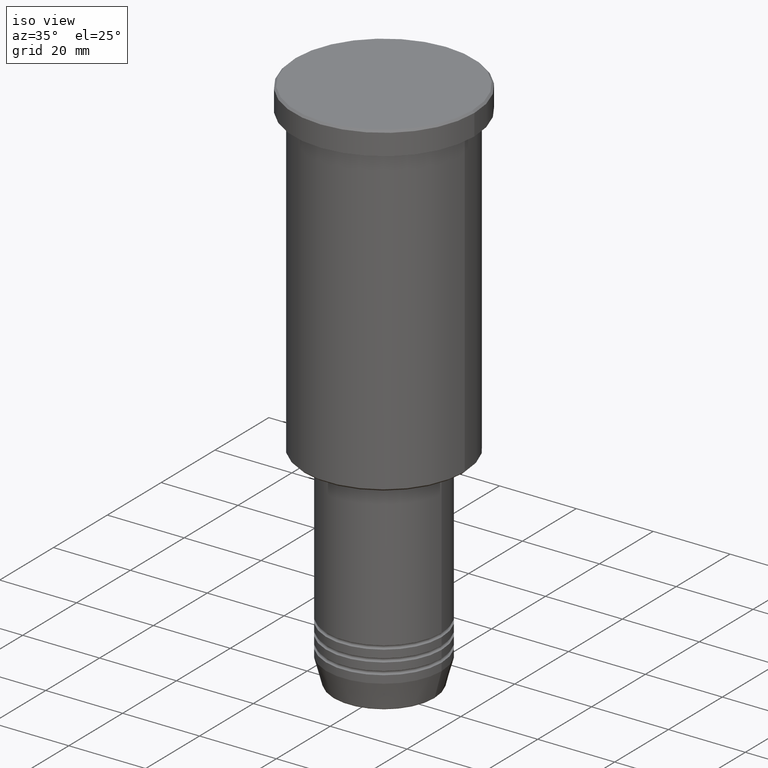
[diagram: clean part render]
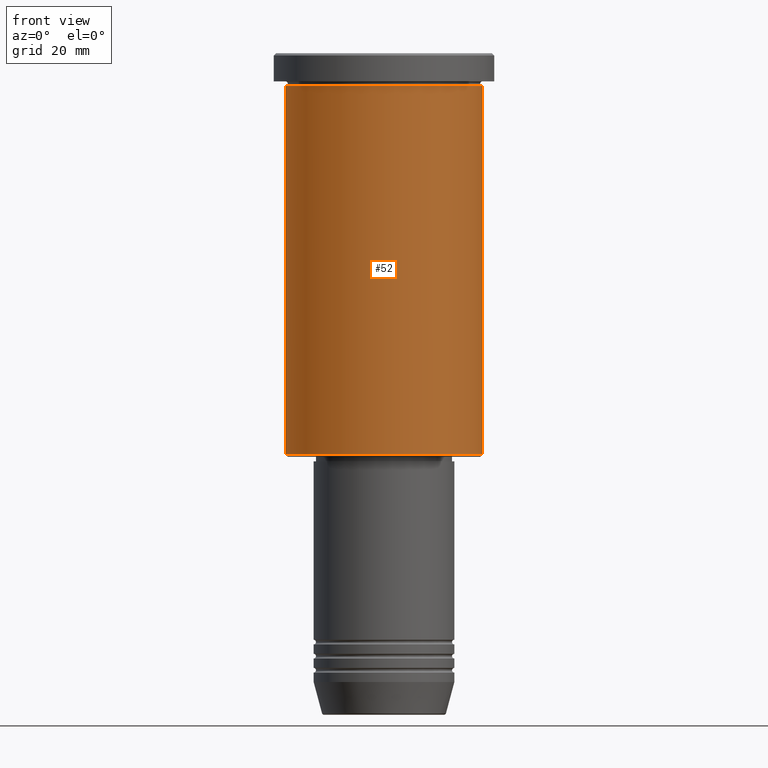
[diagram: tour spotlight — one face highlighted and labeled with its STEP entity id]
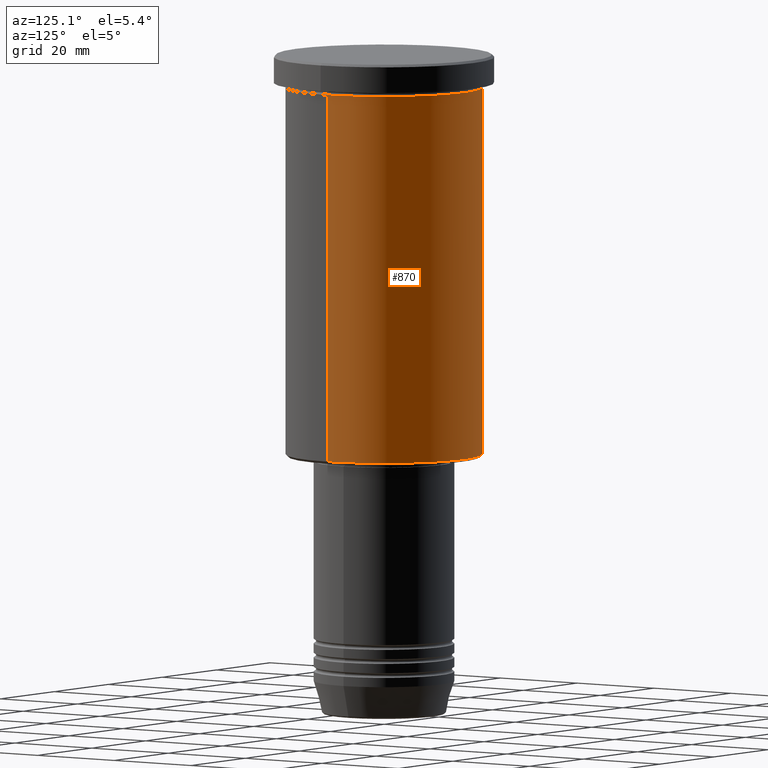
[diagram: tour spotlight — one face highlighted and labeled with its STEP entity id]
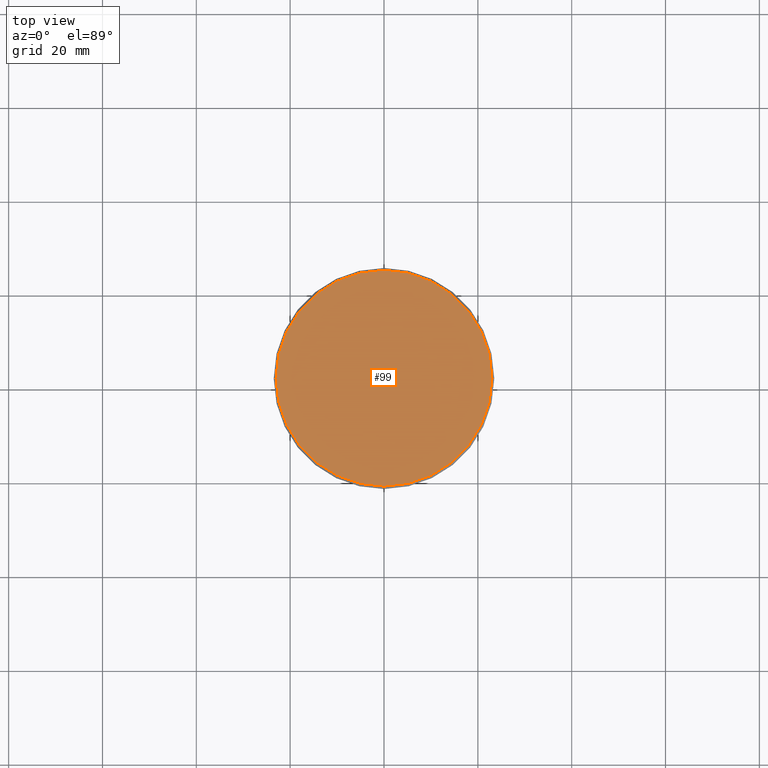
[diagram: tour spotlight — one face highlighted and labeled with its STEP entity id]
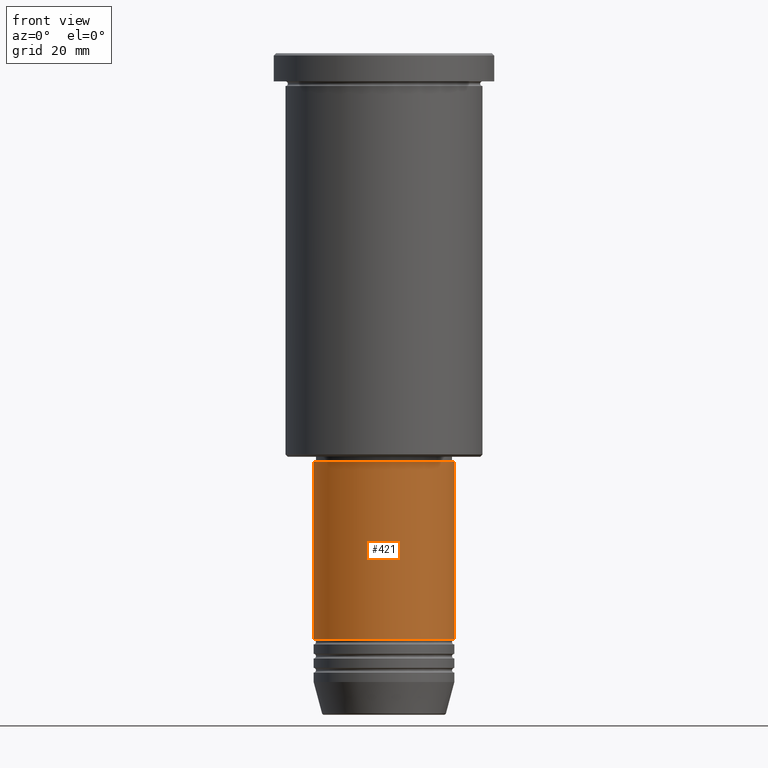
[diagram: tour spotlight — one face highlighted and labeled with its STEP entity id]
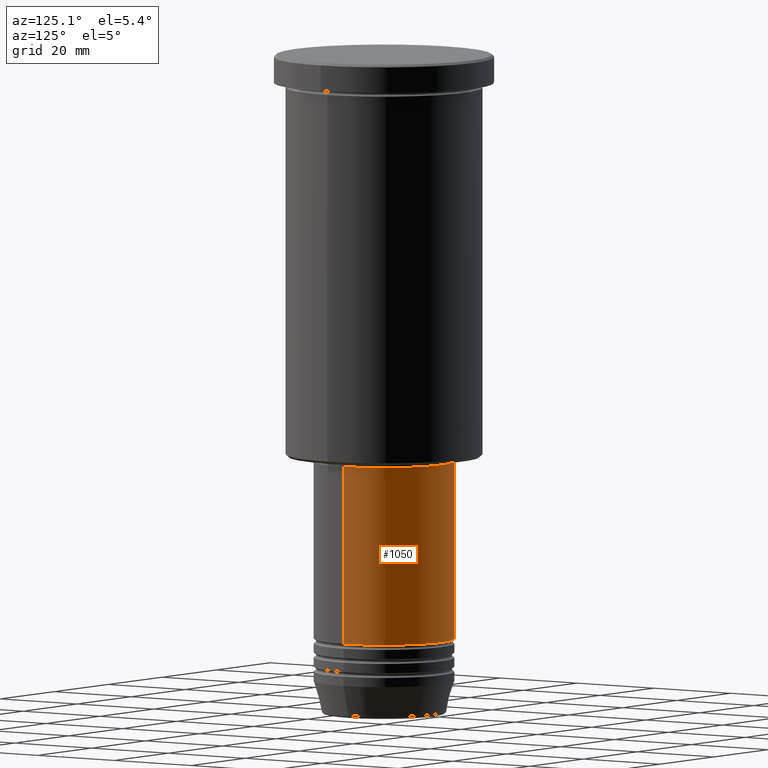
[diagram: tour spotlight — one face highlighted and labeled with its STEP entity id]
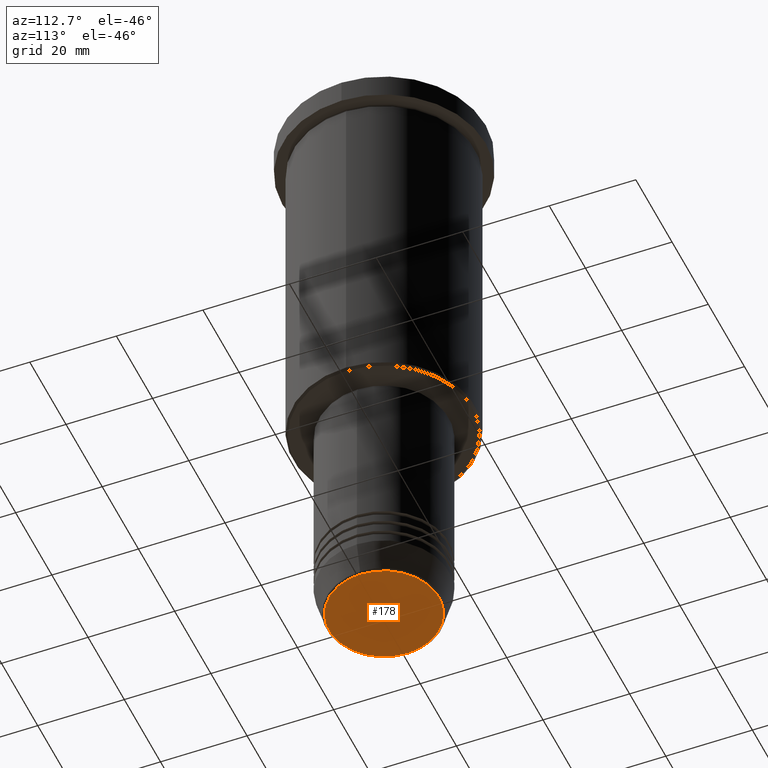
[diagram: tour spotlight — one face highlighted and labeled with its STEP entity id]
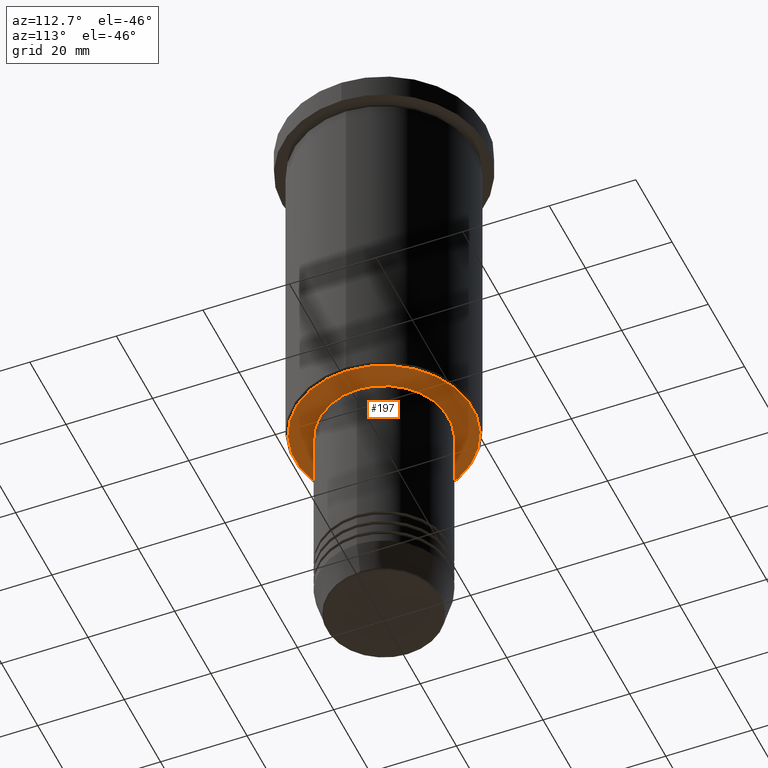
[diagram: tour spotlight — one face highlighted and labeled with its STEP entity id]
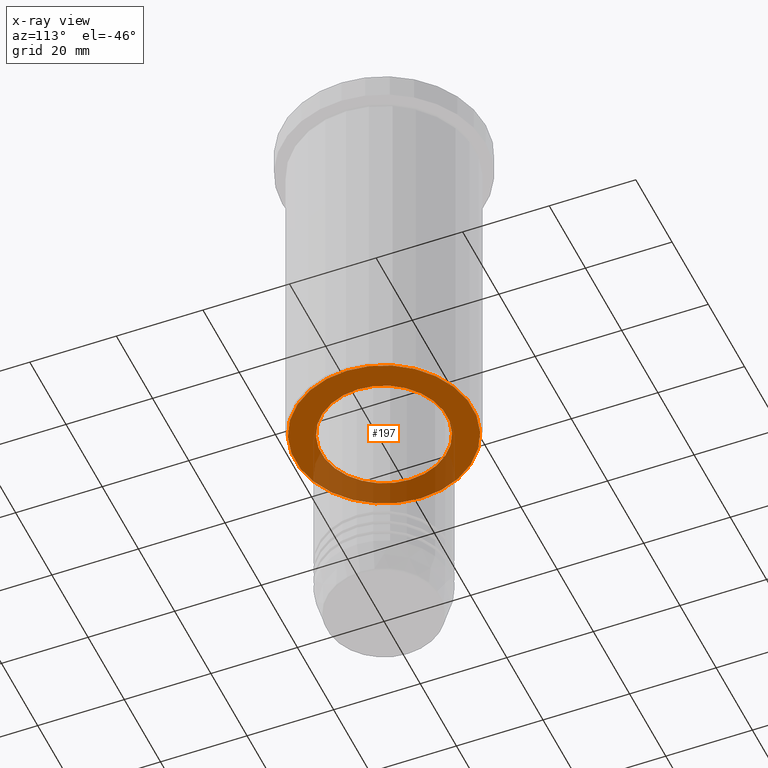
[diagram: x-ray of the same camera — body ghosted, this tour face saturated]
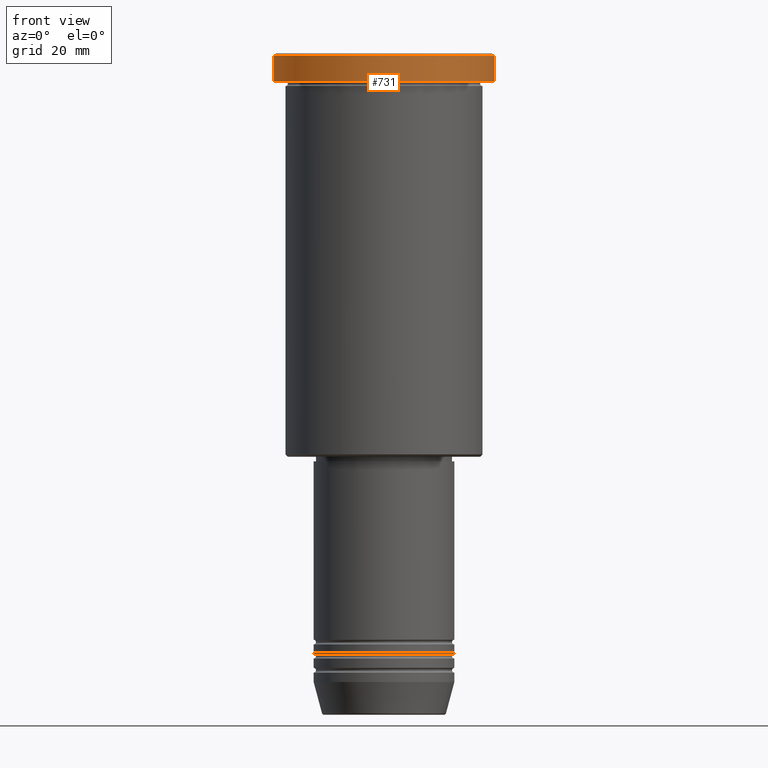
[diagram: tour spotlight — one face highlighted and labeled with its STEP entity id]
A machine part: a face-by-face anatomy tour. The part has 43 B-rep faces; the first image is the clean iso view, then the 8 largest visible faces are spotlighted one at a time (largest first), each with its STEP entity span.

Face 1 — front view, entity #52. In plain terms, the highlighted cylindrical surface (partial cylindrical patch) has radius 21 mm, axis along (-0, -0, 1).
Definition (entity closure, byte-faithful):
#52 = ADVANCED_FACE ( 'NONE', ( #1096 ), #464, .T. ) ;
#110 = CARTESIAN_POINT ( 'NONE',  ( 0.000000000000000000, 0.000000000000000000, -85.50000000000000000 ) ) ;
#140 = DIRECTION ( 'NONE',  ( -0.000000000000000000, -0.000000000000000000, 1.000000000000000000 ) ) ;
#187 = CARTESIAN_POINT ( 'NONE',  ( 0.000000000000000000, 0.000000000000000000, 0.000000000000000000 ) ) ;
#238 = CARTESIAN_POINT ( 'NONE',  ( 0.000000000000000000, 0.000000000000000000, -6.999999999999994671 ) ) ;
#278 = EDGE_CURVE ( 'NONE', #897, #708, #657, .T. ) ;
#289 = DIRECTION ( 'NONE',  ( -0.000000000000000000, -0.000000000000000000, 1.000000000000000000 ) ) ;
#306 = AXIS2_PLACEMENT_3D ( 'NONE', #238, #140, #330 ) ;
#330 = DIRECTION ( 'NONE',  ( 1.000000000000000000, 0.000000000000000000, 0.000000000000000000 ) ) ;
#347 = EDGE_LOOP ( 'NONE', ( #718, #887, #548, #1162 ) ) ;
#426 = VERTEX_POINT ( 'NONE', #743 ) ;
#428 = VERTEX_POINT ( 'NONE', #479 ) ;
#431 = EDGE_CURVE ( 'NONE', #426, #428, #588, .T. ) ;
#446 = LINE ( 'NONE', #540, #630 ) ;
#464 = CYLINDRICAL_SURFACE ( 'NONE', #1173, 21.00000000000000000 ) ;
#479 = CARTESIAN_POINT ( 'NONE',  ( 21.00000000000000000, 0.000000000000000000, -85.50000000000000000 ) ) ;
#540 = CARTESIAN_POINT ( 'NONE',  ( 21.00000000000000000, 0.000000000000000000, 0.000000000000000000 ) ) ;
#548 = ORIENTED_EDGE ( 'NONE', *, *, #919, .T. ) ;
#570 = DIRECTION ( 'NONE',  ( -0.000000000000000000, -0.000000000000000000, 1.000000000000000000 ) ) ;
#588 = CIRCLE ( 'NONE', #627, 21.00000000000000000 ) ;
#627 = AXIS2_PLACEMENT_3D ( 'NONE', #110, #570, #1016 ) ;
#630 = VECTOR ( 'NONE', #872, 1000.000000000000000 ) ;
#642 = DIRECTION ( 'NONE',  ( 1.000000000000000000, 0.000000000000000000, 0.000000000000000000 ) ) ;
#657 = CIRCLE ( 'NONE', #306, 21.00000000000000000 ) ;
#708 = VERTEX_POINT ( 'NONE', #1014 ) ;
#718 = ORIENTED_EDGE ( 'NONE', *, *, #1095, .F. ) ;
#743 = CARTESIAN_POINT ( 'NONE',  ( -21.00000000000000000, 2.571758278209441661E-15, -85.50000000000000000 ) ) ;
#791 = CARTESIAN_POINT ( 'NONE',  ( -21.00000000000000000, 2.571758278209441661E-15, 0.000000000000000000 ) ) ;
#860 = LINE ( 'NONE', #791, #1047 ) ;
#872 = DIRECTION ( 'NONE',  ( -0.000000000000000000, -0.000000000000000000, 1.000000000000000000 ) ) ;
#883 = DIRECTION ( 'NONE',  ( -0.000000000000000000, -0.000000000000000000, 1.000000000000000000 ) ) ;
#887 = ORIENTED_EDGE ( 'NONE', *, *, #431, .T. ) ;
#897 = VERTEX_POINT ( 'NONE', #979 ) ;
#919 = EDGE_CURVE ( 'NONE', #428, #708, #446, .T. ) ;
#979 = CARTESIAN_POINT ( 'NONE',  ( -21.00000000000000000, 2.571758278209441661E-15, -6.999999999999994671 ) ) ;
#1014 = CARTESIAN_POINT ( 'NONE',  ( 21.00000000000000000, 0.000000000000000000, -6.999999999999994671 ) ) ;
#1016 = DIRECTION ( 'NONE',  ( -1.000000000000000000, 0.000000000000000000, 0.000000000000000000 ) ) ;
#1047 = VECTOR ( 'NONE', #883, 1000.000000000000000 ) ;
#1095 = EDGE_CURVE ( 'NONE', #426, #897, #860, .T. ) ;
#1096 = FACE_OUTER_BOUND ( 'NONE', #347, .T. ) ;
#1162 = ORIENTED_EDGE ( 'NONE', *, *, #278, .F. ) ;
#1173 = AXIS2_PLACEMENT_3D ( 'NONE', #187, #289, #642 ) ;

Face 2 — auxiliary view, entity #870. In plain terms, the highlighted cylindrical surface (partial cylindrical patch) has radius 21 mm, axis along (-0, -0, 1).
Definition (entity closure, byte-faithful):
#189 = FACE_OUTER_BOUND ( 'NONE', #784, .T. ) ;
#193 = AXIS2_PLACEMENT_3D ( 'NONE', #1071, #533, #726 ) ;
#282 = DIRECTION ( 'NONE',  ( -0.000000000000000000, -0.000000000000000000, 1.000000000000000000 ) ) ;
#287 = DIRECTION ( 'NONE',  ( 1.000000000000000000, 0.000000000000000000, 0.000000000000000000 ) ) ;
#334 = AXIS2_PLACEMENT_3D ( 'NONE', #866, #420, #632 ) ;
#420 = DIRECTION ( 'NONE',  ( -0.000000000000000000, -0.000000000000000000, 1.000000000000000000 ) ) ;
#426 = VERTEX_POINT ( 'NONE', #743 ) ;
#428 = VERTEX_POINT ( 'NONE', #479 ) ;
#446 = LINE ( 'NONE', #540, #630 ) ;
#449 = ORIENTED_EDGE ( 'NONE', *, *, #598, .T. ) ;
#454 = ORIENTED_EDGE ( 'NONE', *, *, #1095, .T. ) ;
#479 = CARTESIAN_POINT ( 'NONE',  ( 21.00000000000000000, 0.000000000000000000, -85.50000000000000000 ) ) ;
#516 = AXIS2_PLACEMENT_3D ( 'NONE', #829, #282, #287 ) ;
#533 = DIRECTION ( 'NONE',  ( -0.000000000000000000, -0.000000000000000000, 1.000000000000000000 ) ) ;
#538 = ORIENTED_EDGE ( 'NONE', *, *, #768, .F. ) ;
#540 = CARTESIAN_POINT ( 'NONE',  ( 21.00000000000000000, 0.000000000000000000, 0.000000000000000000 ) ) ;
#598 = EDGE_CURVE ( 'NONE', #428, #426, #913, .T. ) ;
#609 = CIRCLE ( 'NONE', #193, 21.00000000000000000 ) ;
#630 = VECTOR ( 'NONE', #872, 1000.000000000000000 ) ;
#632 = DIRECTION ( 'NONE',  ( -1.000000000000000000, 0.000000000000000000, 0.000000000000000000 ) ) ;
#708 = VERTEX_POINT ( 'NONE', #1014 ) ;
#726 = DIRECTION ( 'NONE',  ( 1.000000000000000000, 0.000000000000000000, 0.000000000000000000 ) ) ;
#743 = CARTESIAN_POINT ( 'NONE',  ( -21.00000000000000000, 2.571758278209441661E-15, -85.50000000000000000 ) ) ;
#768 = EDGE_CURVE ( 'NONE', #708, #897, #609, .T. ) ;
#784 = EDGE_LOOP ( 'NONE', ( #449, #454, #538, #933 ) ) ;
#791 = CARTESIAN_POINT ( 'NONE',  ( -21.00000000000000000, 2.571758278209441661E-15, 0.000000000000000000 ) ) ;
#829 = CARTESIAN_POINT ( 'NONE',  ( 0.000000000000000000, 0.000000000000000000, 0.000000000000000000 ) ) ;
#860 = LINE ( 'NONE', #791, #1047 ) ;
#866 = CARTESIAN_POINT ( 'NONE',  ( 0.000000000000000000, 0.000000000000000000, -85.50000000000000000 ) ) ;
#870 = ADVANCED_FACE ( 'NONE', ( #189 ), #915, .T. ) ;
#872 = DIRECTION ( 'NONE',  ( -0.000000000000000000, -0.000000000000000000, 1.000000000000000000 ) ) ;
#883 = DIRECTION ( 'NONE',  ( -0.000000000000000000, -0.000000000000000000, 1.000000000000000000 ) ) ;
#897 = VERTEX_POINT ( 'NONE', #979 ) ;
#913 = CIRCLE ( 'NONE', #334, 21.00000000000000000 ) ;
#915 = CYLINDRICAL_SURFACE ( 'NONE', #516, 21.00000000000000000 ) ;
#919 = EDGE_CURVE ( 'NONE', #428, #708, #446, .T. ) ;
#933 = ORIENTED_EDGE ( 'NONE', *, *, #919, .F. ) ;
#979 = CARTESIAN_POINT ( 'NONE',  ( -21.00000000000000000, 2.571758278209441661E-15, -6.999999999999994671 ) ) ;
#1014 = CARTESIAN_POINT ( 'NONE',  ( 21.00000000000000000, 0.000000000000000000, -6.999999999999994671 ) ) ;
#1047 = VECTOR ( 'NONE', #883, 1000.000000000000000 ) ;
#1071 = CARTESIAN_POINT ( 'NONE',  ( 0.000000000000000000, 0.000000000000000000, -6.999999999999994671 ) ) ;
#1095 = EDGE_CURVE ( 'NONE', #426, #897, #860, .T. ) ;

Face 3 — top view, entity #99. In plain terms, the highlighted planar face has unit normal (0, -0, 1).
Definition (entity closure, byte-faithful):
#25 = CARTESIAN_POINT ( 'NONE',  ( -23.00000000000002487, 0.000000000000000000, 0.000000000000000000 ) ) ;
#64 = DIRECTION ( 'NONE',  ( 1.000000000000000000, 0.000000000000000000, 0.000000000000000000 ) ) ;
#97 = FACE_OUTER_BOUND ( 'NONE', #265, .T. ) ;
#99 = ADVANCED_FACE ( 'NONE', ( #97 ), #1111, .T. ) ;
#105 = DIRECTION ( 'NONE',  ( 1.000000000000000000, 0.000000000000000000, 0.000000000000000000 ) ) ;
#109 = DIRECTION ( 'NONE',  ( -0.000000000000000000, -0.000000000000000000, 1.000000000000000000 ) ) ;
#229 = AXIS2_PLACEMENT_3D ( 'NONE', #261, #891, #64 ) ;
#261 = CARTESIAN_POINT ( 'NONE',  ( 0.000000000000000000, 0.000000000000000000, 0.000000000000000000 ) ) ;
#265 = EDGE_LOOP ( 'NONE', ( #352, #1177 ) ) ;
#352 = ORIENTED_EDGE ( 'NONE', *, *, #721, .T. ) ;
#370 = DIRECTION ( 'NONE',  ( 0.000000000000000000, -0.000000000000000000, 1.000000000000000000 ) ) ;
#409 = AXIS2_PLACEMENT_3D ( 'NONE', #908, #370, #573 ) ;
#573 = DIRECTION ( 'NONE',  ( 1.000000000000000000, 0.000000000000000000, 0.000000000000000000 ) ) ;
#656 = CARTESIAN_POINT ( 'NONE',  ( 0.000000000000000000, 0.000000000000000000, 0.000000000000000000 ) ) ;
#666 = AXIS2_PLACEMENT_3D ( 'NONE', #656, #109, #105 ) ;
#721 = EDGE_CURVE ( 'NONE', #1058, #763, #1026, .T. ) ;
#763 = VERTEX_POINT ( 'NONE', #907 ) ;
#777 = CIRCLE ( 'NONE', #229, 23.00000000000002487 ) ;
#891 = DIRECTION ( 'NONE',  ( -0.000000000000000000, -0.000000000000000000, 1.000000000000000000 ) ) ;
#907 = CARTESIAN_POINT ( 'NONE',  ( 23.00000000000002487, 2.847303808017597717E-15, 0.000000000000000000 ) ) ;
#908 = CARTESIAN_POINT ( 'NONE',  ( 0.000000000000000000, 0.000000000000000000, 0.000000000000000000 ) ) ;
#947 = EDGE_CURVE ( 'NONE', #763, #1058, #777, .T. ) ;
#1026 = CIRCLE ( 'NONE', #666, 23.00000000000002487 ) ;
#1058 = VERTEX_POINT ( 'NONE', #25 ) ;
#1111 = PLANE ( 'NONE',  #409 ) ;
#1177 = ORIENTED_EDGE ( 'NONE', *, *, #947, .T. ) ;

Face 4 — front view, entity #421. In plain terms, the highlighted cylindrical surface (partial cylindrical patch) has radius 15 mm, axis along (-0, -0, 1).
Definition (entity closure, byte-faithful):
#20 = DIRECTION ( 'NONE',  ( 1.000000000000000000, 0.000000000000000000, 0.000000000000000000 ) ) ;
#138 = DIRECTION ( 'NONE',  ( 1.000000000000000000, 0.000000000000000000, 0.000000000000000000 ) ) ;
#160 = ORIENTED_EDGE ( 'NONE', *, *, #1175, .T. ) ;
#169 = AXIS2_PLACEMENT_3D ( 'NONE', #341, #817, #138 ) ;
#194 = CARTESIAN_POINT ( 'NONE',  ( 0.000000000000000000, 0.000000000000000000, -124.9999999999999716 ) ) ;
#264 = VERTEX_POINT ( 'NONE', #997 ) ;
#275 = EDGE_CURVE ( 'NONE', #264, #868, #1169, .T. ) ;
#331 = AXIS2_PLACEMENT_3D ( 'NONE', #194, #827, #503 ) ;
#341 = CARTESIAN_POINT ( 'NONE',  ( 0.000000000000000000, 0.000000000000000000, -87.00000000000000000 ) ) ;
#350 = EDGE_LOOP ( 'NONE', ( #944, #478, #160, #782 ) ) ;
#365 = EDGE_CURVE ( 'NONE', #976, #523, #1013, .T. ) ;
#368 = CARTESIAN_POINT ( 'NONE',  ( -15.00000000000000000, 1.836970198721029589E-15, 0.000000000000000000 ) ) ;
#375 = DIRECTION ( 'NONE',  ( -0.000000000000000000, -0.000000000000000000, 1.000000000000000000 ) ) ;
#385 = LINE ( 'NONE', #368, #1076 ) ;
#387 = CARTESIAN_POINT ( 'NONE',  ( -15.00000000000000000, 1.836970198721029589E-15, -87.00000000000000000 ) ) ;
#421 = ADVANCED_FACE ( 'NONE', ( #1118 ), #562, .T. ) ;
#478 = ORIENTED_EDGE ( 'NONE', *, *, #275, .T. ) ;
#503 = DIRECTION ( 'NONE',  ( 1.000000000000000000, 0.000000000000000000, 0.000000000000000000 ) ) ;
#523 = VERTEX_POINT ( 'NONE', #1065 ) ;
#562 = CYLINDRICAL_SURFACE ( 'NONE', #988, 15.00000000000000000 ) ;
#582 = DIRECTION ( 'NONE',  ( -0.000000000000000000, -0.000000000000000000, 1.000000000000000000 ) ) ;
#634 = VECTOR ( 'NONE', #831, 1000.000000000000000 ) ;
#646 = EDGE_CURVE ( 'NONE', #264, #976, #385, .T. ) ;
#722 = CARTESIAN_POINT ( 'NONE',  ( 15.00000000000000000, 0.000000000000000000, -124.9999999999999716 ) ) ;
#756 = CARTESIAN_POINT ( 'NONE',  ( 0.000000000000000000, 0.000000000000000000, 0.000000000000000000 ) ) ;
#782 = ORIENTED_EDGE ( 'NONE', *, *, #365, .F. ) ;
#817 = DIRECTION ( 'NONE',  ( -0.000000000000000000, -0.000000000000000000, 1.000000000000000000 ) ) ;
#827 = DIRECTION ( 'NONE',  ( -0.000000000000000000, -0.000000000000000000, 1.000000000000000000 ) ) ;
#831 = DIRECTION ( 'NONE',  ( -0.000000000000000000, -0.000000000000000000, 1.000000000000000000 ) ) ;
#868 = VERTEX_POINT ( 'NONE', #722 ) ;
#922 = LINE ( 'NONE', #928, #634 ) ;
#928 = CARTESIAN_POINT ( 'NONE',  ( 15.00000000000000000, 0.000000000000000000, 0.000000000000000000 ) ) ;
#944 = ORIENTED_EDGE ( 'NONE', *, *, #646, .F. ) ;
#976 = VERTEX_POINT ( 'NONE', #387 ) ;
#988 = AXIS2_PLACEMENT_3D ( 'NONE', #756, #582, #20 ) ;
#997 = CARTESIAN_POINT ( 'NONE',  ( -15.00000000000000000, 1.836970198721029589E-15, -124.9999999999999716 ) ) ;
#1013 = CIRCLE ( 'NONE', #169, 15.00000000000000000 ) ;
#1065 = CARTESIAN_POINT ( 'NONE',  ( 15.00000000000000000, 0.000000000000000000, -87.00000000000000000 ) ) ;
#1076 = VECTOR ( 'NONE', #375, 1000.000000000000000 ) ;
#1118 = FACE_OUTER_BOUND ( 'NONE', #350, .T. ) ;
#1169 = CIRCLE ( 'NONE', #331, 15.00000000000000000 ) ;
#1175 = EDGE_CURVE ( 'NONE', #868, #523, #922, .T. ) ;

Face 5 — auxiliary view, entity #1050. In plain terms, the highlighted cylindrical surface (partial cylindrical patch) has radius 15 mm, axis along (-0, -0, 1).
Definition (entity closure, byte-faithful):
#1 = AXIS2_PLACEMENT_3D ( 'NONE', #952, #490, #677 ) ;
#92 = ORIENTED_EDGE ( 'NONE', *, *, #1175, .F. ) ;
#123 = DIRECTION ( 'NONE',  ( 1.000000000000000000, 0.000000000000000000, 0.000000000000000000 ) ) ;
#201 = CIRCLE ( 'NONE', #1, 15.00000000000000000 ) ;
#221 = CYLINDRICAL_SURFACE ( 'NONE', #591, 15.00000000000000000 ) ;
#264 = VERTEX_POINT ( 'NONE', #997 ) ;
#291 = EDGE_CURVE ( 'NONE', #523, #976, #201, .T. ) ;
#301 = ORIENTED_EDGE ( 'NONE', *, *, #646, .T. ) ;
#368 = CARTESIAN_POINT ( 'NONE',  ( -15.00000000000000000, 1.836970198721029589E-15, 0.000000000000000000 ) ) ;
#375 = DIRECTION ( 'NONE',  ( -0.000000000000000000, -0.000000000000000000, 1.000000000000000000 ) ) ;
#385 = LINE ( 'NONE', #368, #1076 ) ;
#387 = CARTESIAN_POINT ( 'NONE',  ( -15.00000000000000000, 1.836970198721029589E-15, -87.00000000000000000 ) ) ;
#418 = CIRCLE ( 'NONE', #706, 15.00000000000000000 ) ;
#471 = CARTESIAN_POINT ( 'NONE',  ( 0.000000000000000000, 0.000000000000000000, 0.000000000000000000 ) ) ;
#490 = DIRECTION ( 'NONE',  ( -0.000000000000000000, -0.000000000000000000, 1.000000000000000000 ) ) ;
#523 = VERTEX_POINT ( 'NONE', #1065 ) ;
#591 = AXIS2_PLACEMENT_3D ( 'NONE', #471, #832, #123 ) ;
#634 = VECTOR ( 'NONE', #831, 1000.000000000000000 ) ;
#646 = EDGE_CURVE ( 'NONE', #264, #976, #385, .T. ) ;
#651 = DIRECTION ( 'NONE',  ( -0.000000000000000000, -0.000000000000000000, 1.000000000000000000 ) ) ;
#677 = DIRECTION ( 'NONE',  ( 1.000000000000000000, 0.000000000000000000, 0.000000000000000000 ) ) ;
#706 = AXIS2_PLACEMENT_3D ( 'NONE', #1080, #651, #836 ) ;
#722 = CARTESIAN_POINT ( 'NONE',  ( 15.00000000000000000, 0.000000000000000000, -124.9999999999999716 ) ) ;
#831 = DIRECTION ( 'NONE',  ( -0.000000000000000000, -0.000000000000000000, 1.000000000000000000 ) ) ;
#832 = DIRECTION ( 'NONE',  ( -0.000000000000000000, -0.000000000000000000, 1.000000000000000000 ) ) ;
#836 = DIRECTION ( 'NONE',  ( 1.000000000000000000, 0.000000000000000000, 0.000000000000000000 ) ) ;
#868 = VERTEX_POINT ( 'NONE', #722 ) ;
#922 = LINE ( 'NONE', #928, #634 ) ;
#928 = CARTESIAN_POINT ( 'NONE',  ( 15.00000000000000000, 0.000000000000000000, 0.000000000000000000 ) ) ;
#952 = CARTESIAN_POINT ( 'NONE',  ( 0.000000000000000000, 0.000000000000000000, -87.00000000000000000 ) ) ;
#972 = ORIENTED_EDGE ( 'NONE', *, *, #291, .F. ) ;
#976 = VERTEX_POINT ( 'NONE', #387 ) ;
#997 = CARTESIAN_POINT ( 'NONE',  ( -15.00000000000000000, 1.836970198721029589E-15, -124.9999999999999716 ) ) ;
#1050 = ADVANCED_FACE ( 'NONE', ( #1125 ), #221, .T. ) ;
#1065 = CARTESIAN_POINT ( 'NONE',  ( 15.00000000000000000, 0.000000000000000000, -87.00000000000000000 ) ) ;
#1076 = VECTOR ( 'NONE', #375, 1000.000000000000000 ) ;
#1080 = CARTESIAN_POINT ( 'NONE',  ( 0.000000000000000000, 0.000000000000000000, -124.9999999999999716 ) ) ;
#1125 = FACE_OUTER_BOUND ( 'NONE', #1146, .T. ) ;
#1146 = EDGE_LOOP ( 'NONE', ( #1172, #301, #972, #92 ) ) ;
#1147 = EDGE_CURVE ( 'NONE', #868, #264, #418, .T. ) ;
#1172 = ORIENTED_EDGE ( 'NONE', *, *, #1147, .T. ) ;
#1175 = EDGE_CURVE ( 'NONE', #868, #523, #922, .T. ) ;

Face 6 — auxiliary view, entity #178. In plain terms, the highlighted planar face has unit normal (0, -0, 1).
Definition (entity closure, byte-faithful):
#83 = DIRECTION ( 'NONE',  ( 0.000000000000000000, 0.000000000000000000, -1.000000000000000000 ) ) ;
#106 = EDGE_CURVE ( 'NONE', #930, #1082, #1136, .T. ) ;
#134 = DIRECTION ( 'NONE',  ( 0.000000000000000000, 0.000000000000000000, -1.000000000000000000 ) ) ;
#156 = CARTESIAN_POINT ( 'NONE',  ( 0.000000000000000000, 0.000000000000000000, -141.0000000000000000 ) ) ;
#178 = ADVANCED_FACE ( 'NONE', ( #292 ), #661, .F. ) ;
#210 = CIRCLE ( 'NONE', #361, 12.74069215899265828 ) ;
#252 = ORIENTED_EDGE ( 'NONE', *, *, #984, .T. ) ;
#292 = FACE_OUTER_BOUND ( 'NONE', #1024, .T. ) ;
#351 = AXIS2_PLACEMENT_3D ( 'NONE', #156, #798, #439 ) ;
#361 = AXIS2_PLACEMENT_3D ( 'NONE', #443, #83, #526 ) ;
#439 = DIRECTION ( 'NONE',  ( 1.000000000000000000, 0.000000000000000000, 0.000000000000000000 ) ) ;
#443 = CARTESIAN_POINT ( 'NONE',  ( 0.000000000000000000, 0.000000000000000000, -141.0000000000000000 ) ) ;
#501 = CARTESIAN_POINT ( 'NONE',  ( -12.74069215899265828, 1.589857736427681035E-15, -141.0000000000000000 ) ) ;
#526 = DIRECTION ( 'NONE',  ( 1.000000000000000000, 0.000000000000000000, 0.000000000000000000 ) ) ;
#535 = CARTESIAN_POINT ( 'NONE',  ( 12.74069215899265828, 0.000000000000000000, -141.0000000000000000 ) ) ;
#661 = PLANE ( 'NONE',  #351 ) ;
#716 = AXIS2_PLACEMENT_3D ( 'NONE', #770, #134, #1037 ) ;
#770 = CARTESIAN_POINT ( 'NONE',  ( 0.000000000000000000, 0.000000000000000000, -141.0000000000000000 ) ) ;
#798 = DIRECTION ( 'NONE',  ( 0.000000000000000000, -0.000000000000000000, 1.000000000000000000 ) ) ;
#930 = VERTEX_POINT ( 'NONE', #535 ) ;
#984 = EDGE_CURVE ( 'NONE', #1082, #930, #210, .T. ) ;
#1024 = EDGE_LOOP ( 'NONE', ( #1078, #252 ) ) ;
#1037 = DIRECTION ( 'NONE',  ( 1.000000000000000000, 0.000000000000000000, 0.000000000000000000 ) ) ;
#1078 = ORIENTED_EDGE ( 'NONE', *, *, #106, .T. ) ;
#1082 = VERTEX_POINT ( 'NONE', #501 ) ;
#1136 = CIRCLE ( 'NONE', #716, 12.74069215899265828 ) ;

Face 7 — auxiliary view, entity #197. An x-ray twin of the same camera follows (body ghosted, this face saturated) — the face is partly hidden behind the body. In plain terms, the highlighted planar face has unit normal (0, 0, -1).
Definition (entity closure, byte-faithful):
#13 = CARTESIAN_POINT ( 'NONE',  ( 20.50000000000000355, 0.000000000000000000, -86.00000000000000000 ) ) ;
#26 = VERTEX_POINT ( 'NONE', #525 ) ;
#29 = DIRECTION ( 'NONE',  ( -0.000000000000000000, -0.000000000000000000, 1.000000000000000000 ) ) ;
#57 = VERTEX_POINT ( 'NONE', #447 ) ;
#74 = VERTEX_POINT ( 'NONE', #13 ) ;
#86 = AXIS2_PLACEMENT_3D ( 'NONE', #995, #452, #1123 ) ;
#95 = CIRCLE ( 'NONE', #1046, 14.49999999999999822 ) ;
#119 = CARTESIAN_POINT ( 'NONE',  ( 14.49999999999999822, 0.000000000000000000, -86.00000000000000000 ) ) ;
#121 = EDGE_CURVE ( 'NONE', #26, #74, #1093, .T. ) ;
#130 = DIRECTION ( 'NONE',  ( -1.000000000000000000, 0.000000000000000000, 0.000000000000000000 ) ) ;
#181 = ORIENTED_EDGE ( 'NONE', *, *, #121, .T. ) ;
#197 = ADVANCED_FACE ( 'NONE', ( #624, #820 ), #636, .T. ) ;
#209 = EDGE_CURVE ( 'NONE', #57, #975, #977, .T. ) ;
#383 = DIRECTION ( 'NONE',  ( 0.000000000000000000, 0.000000000000000000, -1.000000000000000000 ) ) ;
#402 = AXIS2_PLACEMENT_3D ( 'NONE', #475, #383, #1124 ) ;
#447 = CARTESIAN_POINT ( 'NONE',  ( -14.49999999999999822, 1.775737858763662015E-15, -86.00000000000000000 ) ) ;
#452 = DIRECTION ( 'NONE',  ( 0.000000000000000000, 0.000000000000000000, -1.000000000000000000 ) ) ;
#475 = CARTESIAN_POINT ( 'NONE',  ( 0.000000000000000000, 0.000000000000000000, -86.00000000000000000 ) ) ;
#525 = CARTESIAN_POINT ( 'NONE',  ( -20.50000000000000355, 2.541142108230758269E-15, -86.00000000000000000 ) ) ;
#561 = CARTESIAN_POINT ( 'NONE',  ( 0.000000000000000000, 0.000000000000000000, -86.00000000000000000 ) ) ;
#593 = ORIENTED_EDGE ( 'NONE', *, *, #209, .T. ) ;
#624 = FACE_OUTER_BOUND ( 'NONE', #720, .T. ) ;
#636 = PLANE ( 'NONE',  #86 ) ;
#676 = ORIENTED_EDGE ( 'NONE', *, *, #804, .T. ) ;
#720 = EDGE_LOOP ( 'NONE', ( #966, #181 ) ) ;
#725 = AXIS2_PLACEMENT_3D ( 'NONE', #561, #934, #130 ) ;
#804 = EDGE_CURVE ( 'NONE', #975, #57, #95, .T. ) ;
#820 = FACE_BOUND ( 'NONE', #882, .T. ) ;
#835 = AXIS2_PLACEMENT_3D ( 'NONE', #1020, #29, #863 ) ;
#863 = DIRECTION ( 'NONE',  ( 1.000000000000000000, 0.000000000000000000, 0.000000000000000000 ) ) ;
#882 = EDGE_LOOP ( 'NONE', ( #676, #593 ) ) ;
#934 = DIRECTION ( 'NONE',  ( 0.000000000000000000, 0.000000000000000000, -1.000000000000000000 ) ) ;
#966 = ORIENTED_EDGE ( 'NONE', *, *, #1166, .T. ) ;
#975 = VERTEX_POINT ( 'NONE', #119 ) ;
#977 = CIRCLE ( 'NONE', #835, 14.49999999999999822 ) ;
#995 = CARTESIAN_POINT ( 'NONE',  ( 0.000000000000000000, 21.00000000000000000, -86.00000000000000000 ) ) ;
#1017 = DIRECTION ( 'NONE',  ( 1.000000000000000000, 0.000000000000000000, 0.000000000000000000 ) ) ;
#1020 = CARTESIAN_POINT ( 'NONE',  ( 0.000000000000000000, 0.000000000000000000, -86.00000000000000000 ) ) ;
#1046 = AXIS2_PLACEMENT_3D ( 'NONE', #1144, #1087, #1017 ) ;
#1068 = CIRCLE ( 'NONE', #725, 20.50000000000000355 ) ;
#1087 = DIRECTION ( 'NONE',  ( -0.000000000000000000, -0.000000000000000000, 1.000000000000000000 ) ) ;
#1093 = CIRCLE ( 'NONE', #402, 20.50000000000000355 ) ;
#1123 = DIRECTION ( 'NONE',  ( -1.000000000000000000, 0.000000000000000000, -0.000000000000000000 ) ) ;
#1124 = DIRECTION ( 'NONE',  ( -1.000000000000000000, 0.000000000000000000, 0.000000000000000000 ) ) ;
#1144 = CARTESIAN_POINT ( 'NONE',  ( 0.000000000000000000, 0.000000000000000000, -86.00000000000000000 ) ) ;
#1166 = EDGE_CURVE ( 'NONE', #74, #26, #1068, .T. ) ;

Face 8 — front view, entity #731. In plain terms, the highlighted cylindrical surface (partial cylindrical patch) has radius 23.5 mm, axis along (-0, -0, 1).
Definition (entity closure, byte-faithful):
#2 = CARTESIAN_POINT ( 'NONE',  ( -23.50000000000000000, 2.877919977996280320E-15, -0.4999999999999726885 ) ) ;
#27 = CARTESIAN_POINT ( 'NONE',  ( 0.000000000000000000, 0.000000000000000000, -5.999999999999994671 ) ) ;
#48 = VERTEX_POINT ( 'NONE', #2 ) ;
#54 = VERTEX_POINT ( 'NONE', #271 ) ;
#61 = CIRCLE ( 'NONE', #1086, 23.50000000000000000 ) ;
#91 = CARTESIAN_POINT ( 'NONE',  ( 23.50000000000000000, 0.000000000000000000, 0.000000000000000000 ) ) ;
#98 = CARTESIAN_POINT ( 'NONE',  ( 23.50000000000000000, 0.000000000000000000, -5.999999999999994671 ) ) ;
#127 = FACE_OUTER_BOUND ( 'NONE', #858, .T. ) ;
#168 = VERTEX_POINT ( 'NONE', #688 ) ;
#182 = DIRECTION ( 'NONE',  ( 1.000000000000000000, 0.000000000000000000, 0.000000000000000000 ) ) ;
#259 = ORIENTED_EDGE ( 'NONE', *, *, #703, .T. ) ;
#266 = CARTESIAN_POINT ( 'NONE',  ( 0.000000000000000000, 0.000000000000000000, -0.4999999999999726885 ) ) ;
#271 = CARTESIAN_POINT ( 'NONE',  ( -23.50000000000000000, 2.877919977996280320E-15, -5.999999999999994671 ) ) ;
#285 = DIRECTION ( 'NONE',  ( -0.000000000000000000, -0.000000000000000000, 1.000000000000000000 ) ) ;
#290 = CARTESIAN_POINT ( 'NONE',  ( 0.000000000000000000, 0.000000000000000000, 0.000000000000000000 ) ) ;
#322 = ORIENTED_EDGE ( 'NONE', *, *, #857, .T. ) ;
#348 = EDGE_CURVE ( 'NONE', #168, #48, #673, .T. ) ;
#395 = VERTEX_POINT ( 'NONE', #98 ) ;
#450 = DIRECTION ( 'NONE',  ( -0.000000000000000000, -0.000000000000000000, 1.000000000000000000 ) ) ;
#484 = ORIENTED_EDGE ( 'NONE', *, *, #596, .F. ) ;
#514 = CARTESIAN_POINT ( 'NONE',  ( -23.50000000000000000, 2.877919977996280320E-15, 0.000000000000000000 ) ) ;
#596 = EDGE_CURVE ( 'NONE', #54, #48, #955, .T. ) ;
#612 = DIRECTION ( 'NONE',  ( 0.000000000000000000, 0.000000000000000000, -1.000000000000000000 ) ) ;
#660 = DIRECTION ( 'NONE',  ( 1.000000000000000000, 0.000000000000000000, 0.000000000000000000 ) ) ;
#673 = CIRCLE ( 'NONE', #855, 23.50000000000000000 ) ;
#688 = CARTESIAN_POINT ( 'NONE',  ( 23.50000000000000000, 0.000000000000000000, -0.4999999999999726885 ) ) ;
#703 = EDGE_CURVE ( 'NONE', #54, #395, #61, .T. ) ;
#731 = ADVANCED_FACE ( 'NONE', ( #127 ), #735, .T. ) ;
#735 = CYLINDRICAL_SURFACE ( 'NONE', #794, 23.50000000000000000 ) ;
#794 = AXIS2_PLACEMENT_3D ( 'NONE', #290, #840, #660 ) ;
#840 = DIRECTION ( 'NONE',  ( -0.000000000000000000, -0.000000000000000000, 1.000000000000000000 ) ) ;
#855 = AXIS2_PLACEMENT_3D ( 'NONE', #266, #612, #182 ) ;
#857 = EDGE_CURVE ( 'NONE', #395, #168, #994, .T. ) ;
#858 = EDGE_LOOP ( 'NONE', ( #484, #259, #322, #873 ) ) ;
#873 = ORIENTED_EDGE ( 'NONE', *, *, #348, .T. ) ;
#950 = VECTOR ( 'NONE', #961, 1000.000000000000000 ) ;
#955 = LINE ( 'NONE', #514, #950 ) ;
#961 = DIRECTION ( 'NONE',  ( -0.000000000000000000, -0.000000000000000000, 1.000000000000000000 ) ) ;
#990 = VECTOR ( 'NONE', #450, 1000.000000000000000 ) ;
#994 = LINE ( 'NONE', #91, #990 ) ;
#1086 = AXIS2_PLACEMENT_3D ( 'NONE', #27, #285, #1113 ) ;
#1113 = DIRECTION ( 'NONE',  ( 1.000000000000000000, 0.000000000000000000, 0.000000000000000000 ) ) ;